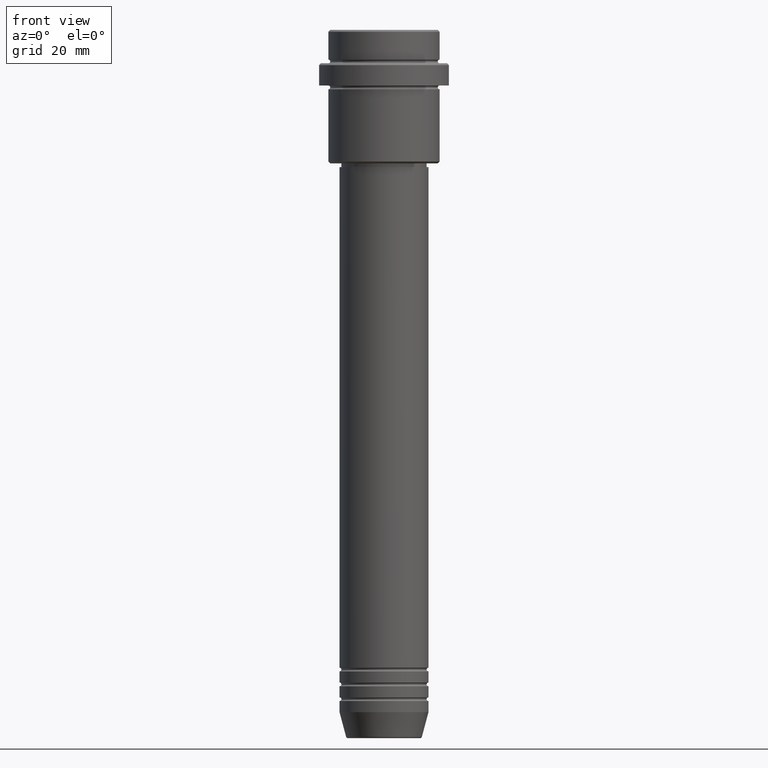
[diagram: clean part render]
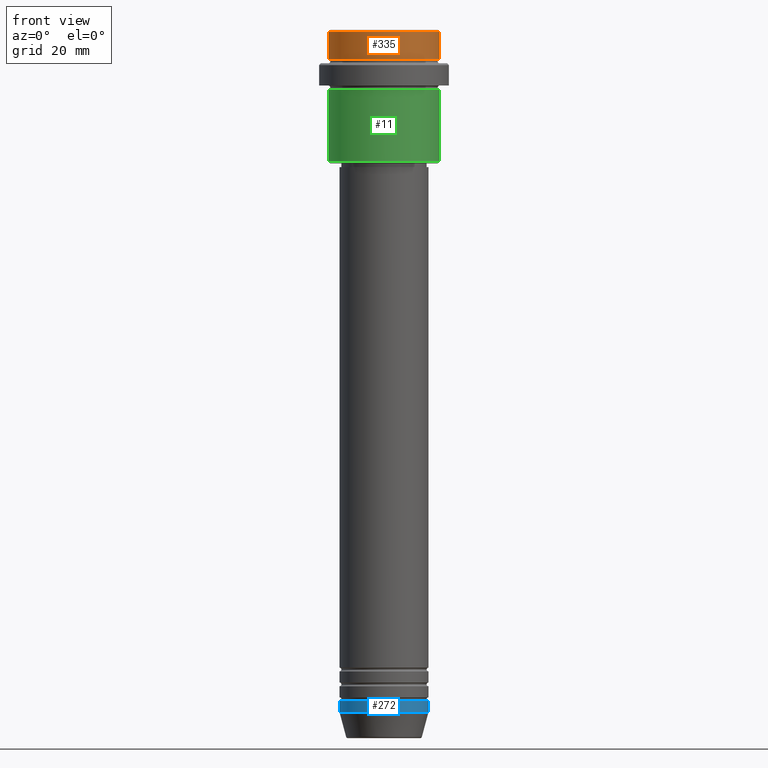
[diagram: same view with three faces highlighted in distinct colors, each labeled with its STEP entity id]
A machine part, front view with three faces highlighted in distinct colors.
Their STEP definitions:

[orange] entity #335 — the highlighted cylindrical surface (partial cylindrical patch) has radius 15 mm, axis along (-0, -0, 1).
#4 = AXIS2_PLACEMENT_3D ( 'NONE', #1113, #690, #12 ) ;
#12 = DIRECTION ( 'NONE',  ( 1.000000000000000000, 0.000000000000000000, 0.000000000000000000 ) ) ;
#42 = CARTESIAN_POINT ( 'NONE',  ( -15.00000000000000000, 1.836970198721029589E-15, -7.999999999999998224 ) ) ;
#122 = CYLINDRICAL_SURFACE ( 'NONE', #531, 15.00000000000000000 ) ;
#136 = EDGE_CURVE ( 'NONE', #305, #1326, #813, .T. ) ;
#305 = VERTEX_POINT ( 'NONE', #42 ) ;
#306 = FACE_OUTER_BOUND ( 'NONE', #519, .T. ) ;
#330 = ORIENTED_EDGE ( 'NONE', *, *, #1100, .T. ) ;
#335 = ADVANCED_FACE ( 'NONE', ( #306 ), #122, .T. ) ;
#348 = DIRECTION ( 'NONE',  ( 1.000000000000000000, 0.000000000000000000, 0.000000000000000000 ) ) ;
#395 = DIRECTION ( 'NONE',  ( 0.000000000000000000, 0.000000000000000000, -1.000000000000000000 ) ) ;
#446 = VECTOR ( 'NONE', #1207, 1000.000000000000000 ) ;
#462 = VERTEX_POINT ( 'NONE', #579 ) ;
#469 = CARTESIAN_POINT ( 'NONE',  ( 15.00000000000000000, 0.000000000000000000, 0.000000000000000000 ) ) ;
#519 = EDGE_LOOP ( 'NONE', ( #950, #1051, #330, #906 ) ) ;
#528 = EDGE_CURVE ( 'NONE', #462, #1110, #839, .T. ) ;
#531 = AXIS2_PLACEMENT_3D ( 'NONE', #547, #1000, #348 ) ;
#547 = CARTESIAN_POINT ( 'NONE',  ( 0.000000000000000000, 0.000000000000000000, 0.000000000000000000 ) ) ;
#566 = DIRECTION ( 'NONE',  ( -0.000000000000000000, -0.000000000000000000, 1.000000000000000000 ) ) ;
#579 = CARTESIAN_POINT ( 'NONE',  ( 15.00000000000000000, 0.000000000000000000, -0.5000000000000108802 ) ) ;
#633 = AXIS2_PLACEMENT_3D ( 'NONE', #1375, #395, #940 ) ;
#690 = DIRECTION ( 'NONE',  ( -0.000000000000000000, -0.000000000000000000, 1.000000000000000000 ) ) ;
#773 = CARTESIAN_POINT ( 'NONE',  ( -15.00000000000000000, 1.836970198721029589E-15, 0.000000000000000000 ) ) ;
#813 = CIRCLE ( 'NONE', #4, 15.00000000000000000 ) ;
#839 = CIRCLE ( 'NONE', #633, 15.00000000000000000 ) ;
#906 = ORIENTED_EDGE ( 'NONE', *, *, #528, .T. ) ;
#930 = CARTESIAN_POINT ( 'NONE',  ( 15.00000000000000000, 0.000000000000000000, -7.999999999999998224 ) ) ;
#940 = DIRECTION ( 'NONE',  ( 1.000000000000000000, 0.000000000000000000, 0.000000000000000000 ) ) ;
#950 = ORIENTED_EDGE ( 'NONE', *, *, #1371, .F. ) ;
#1000 = DIRECTION ( 'NONE',  ( -0.000000000000000000, -0.000000000000000000, 1.000000000000000000 ) ) ;
#1051 = ORIENTED_EDGE ( 'NONE', *, *, #136, .T. ) ;
#1100 = EDGE_CURVE ( 'NONE', #1326, #462, #1249, .T. ) ;
#1110 = VERTEX_POINT ( 'NONE', #1141 ) ;
#1113 = CARTESIAN_POINT ( 'NONE',  ( 0.000000000000000000, 0.000000000000000000, -7.999999999999998224 ) ) ;
#1141 = CARTESIAN_POINT ( 'NONE',  ( -15.00000000000000000, 1.836970198721029589E-15, -0.5000000000000108802 ) ) ;
#1207 = DIRECTION ( 'NONE',  ( -0.000000000000000000, -0.000000000000000000, 1.000000000000000000 ) ) ;
#1249 = LINE ( 'NONE', #469, #1368 ) ;
#1312 = LINE ( 'NONE', #773, #446 ) ;
#1326 = VERTEX_POINT ( 'NONE', #930 ) ;
#1368 = VECTOR ( 'NONE', #566, 1000.000000000000000 ) ;
#1371 = EDGE_CURVE ( 'NONE', #305, #1110, #1312, .T. ) ;
#1375 = CARTESIAN_POINT ( 'NONE',  ( 0.000000000000000000, 0.000000000000000000, -0.5000000000000108802 ) ) ;

[blue] entity #272 — the highlighted cylindrical surface (partial cylindrical patch) has radius 12 mm, axis along (-0, -0, 1).
#65 = DIRECTION ( 'NONE',  ( -0.000000000000000000, -0.000000000000000000, 1.000000000000000000 ) ) ;
#107 = DIRECTION ( 'NONE',  ( -0.000000000000000000, -0.000000000000000000, 1.000000000000000000 ) ) ;
#125 = VECTOR ( 'NONE', #877, 1000.000000000000000 ) ;
#172 = EDGE_LOOP ( 'NONE', ( #1196, #1215, #960, #1376 ) ) ;
#221 = LINE ( 'NONE', #1095, #463 ) ;
#272 = ADVANCED_FACE ( 'NONE', ( #1054 ), #811, .T. ) ;
#324 = CARTESIAN_POINT ( 'NONE',  ( 0.000000000000000000, 0.000000000000000000, -184.0000000000000000 ) ) ;
#326 = DIRECTION ( 'NONE',  ( 1.000000000000000000, 0.000000000000000000, 0.000000000000000000 ) ) ;
#340 = DIRECTION ( 'NONE',  ( -0.000000000000000000, -0.000000000000000000, 1.000000000000000000 ) ) ;
#442 = AXIS2_PLACEMENT_3D ( 'NONE', #982, #340, #326 ) ;
#463 = VECTOR ( 'NONE', #657, 1000.000000000000000 ) ;
#542 = CARTESIAN_POINT ( 'NONE',  ( -12.00000000000000000, 1.469576158976823947E-15, 0.000000000000000000 ) ) ;
#555 = DIRECTION ( 'NONE',  ( 1.000000000000000000, 0.000000000000000000, 0.000000000000000000 ) ) ;
#657 = DIRECTION ( 'NONE',  ( -0.000000000000000000, -0.000000000000000000, 1.000000000000000000 ) ) ;
#676 = AXIS2_PLACEMENT_3D ( 'NONE', #324, #107, #555 ) ;
#688 = VERTEX_POINT ( 'NONE', #966 ) ;
#774 = EDGE_CURVE ( 'NONE', #688, #1347, #221, .T. ) ;
#782 = EDGE_CURVE ( 'NONE', #1169, #1347, #862, .T. ) ;
#811 = CYLINDRICAL_SURFACE ( 'NONE', #879, 12.00000000000000000 ) ;
#862 = CIRCLE ( 'NONE', #442, 12.00000000000000000 ) ;
#877 = DIRECTION ( 'NONE',  ( -0.000000000000000000, -0.000000000000000000, 1.000000000000000000 ) ) ;
#879 = AXIS2_PLACEMENT_3D ( 'NONE', #1131, #65, #933 ) ;
#896 = CARTESIAN_POINT ( 'NONE',  ( 12.00000000000000000, 0.000000000000000000, -181.0000000000000000 ) ) ;
#933 = DIRECTION ( 'NONE',  ( 1.000000000000000000, 0.000000000000000000, 0.000000000000000000 ) ) ;
#934 = CARTESIAN_POINT ( 'NONE',  ( -12.00000000000000000, 1.469576158976823947E-15, -184.0000000000000000 ) ) ;
#960 = ORIENTED_EDGE ( 'NONE', *, *, #774, .T. ) ;
#962 = VERTEX_POINT ( 'NONE', #934 ) ;
#966 = CARTESIAN_POINT ( 'NONE',  ( 12.00000000000000000, 0.000000000000000000, -184.0000000000000000 ) ) ;
#982 = CARTESIAN_POINT ( 'NONE',  ( 0.000000000000000000, 0.000000000000000000, -181.0000000000000000 ) ) ;
#1021 = EDGE_CURVE ( 'NONE', #962, #688, #1250, .T. ) ;
#1054 = FACE_OUTER_BOUND ( 'NONE', #172, .T. ) ;
#1092 = LINE ( 'NONE', #542, #125 ) ;
#1095 = CARTESIAN_POINT ( 'NONE',  ( 12.00000000000000000, 0.000000000000000000, 0.000000000000000000 ) ) ;
#1131 = CARTESIAN_POINT ( 'NONE',  ( 0.000000000000000000, 0.000000000000000000, 0.000000000000000000 ) ) ;
#1169 = VERTEX_POINT ( 'NONE', #1298 ) ;
#1176 = EDGE_CURVE ( 'NONE', #962, #1169, #1092, .T. ) ;
#1196 = ORIENTED_EDGE ( 'NONE', *, *, #1176, .F. ) ;
#1215 = ORIENTED_EDGE ( 'NONE', *, *, #1021, .T. ) ;
#1250 = CIRCLE ( 'NONE', #676, 12.00000000000000000 ) ;
#1298 = CARTESIAN_POINT ( 'NONE',  ( -12.00000000000000000, 1.469576158976823947E-15, -181.0000000000000000 ) ) ;
#1347 = VERTEX_POINT ( 'NONE', #896 ) ;
#1376 = ORIENTED_EDGE ( 'NONE', *, *, #782, .F. ) ;

[green] entity #11 — the highlighted cylindrical surface (partial cylindrical patch) has radius 15 mm, axis along (-0, -0, 1).
#11 = ADVANCED_FACE ( 'NONE', ( #420 ), #317, .T. ) ;
#67 = DIRECTION ( 'NONE',  ( 1.000000000000000000, 0.000000000000000000, 0.000000000000000000 ) ) ;
#94 = DIRECTION ( 'NONE',  ( -0.000000000000000000, -0.000000000000000000, 1.000000000000000000 ) ) ;
#106 = DIRECTION ( 'NONE',  ( 1.000000000000000000, 0.000000000000000000, 0.000000000000000000 ) ) ;
#139 = ORIENTED_EDGE ( 'NONE', *, *, #539, .F. ) ;
#158 = ORIENTED_EDGE ( 'NONE', *, *, #656, .T. ) ;
#170 = EDGE_CURVE ( 'NONE', #709, #1333, #602, .T. ) ;
#187 = DIRECTION ( 'NONE',  ( -0.000000000000000000, -0.000000000000000000, 1.000000000000000000 ) ) ;
#194 = CARTESIAN_POINT ( 'NONE',  ( -15.00000000000000000, 1.836970198721029589E-15, -35.50000000000002132 ) ) ;
#197 = AXIS2_PLACEMENT_3D ( 'NONE', #1090, #94, #106 ) ;
#283 = EDGE_CURVE ( 'NONE', #678, #1252, #923, .T. ) ;
#317 = CYLINDRICAL_SURFACE ( 'NONE', #197, 15.00000000000000000 ) ;
#367 = CARTESIAN_POINT ( 'NONE',  ( 0.000000000000000000, 0.000000000000000000, -16.00000000000000000 ) ) ;
#393 = CARTESIAN_POINT ( 'NONE',  ( -15.00000000000000000, 1.836970198721029589E-15, 0.000000000000000000 ) ) ;
#420 = FACE_OUTER_BOUND ( 'NONE', #1041, .T. ) ;
#504 = CARTESIAN_POINT ( 'NONE',  ( 15.00000000000000178, 0.000000000000000000, -16.00000000000000000 ) ) ;
#521 = ORIENTED_EDGE ( 'NONE', *, *, #170, .F. ) ;
#530 = VECTOR ( 'NONE', #1140, 1000.000000000000000 ) ;
#532 = CIRCLE ( 'NONE', #674, 15.00000000000000000 ) ;
#539 = EDGE_CURVE ( 'NONE', #1333, #1252, #1009, .T. ) ;
#587 = CARTESIAN_POINT ( 'NONE',  ( 15.00000000000000000, 0.000000000000000000, 0.000000000000000000 ) ) ;
#602 = LINE ( 'NONE', #393, #1061 ) ;
#656 = EDGE_CURVE ( 'NONE', #709, #678, #532, .T. ) ;
#674 = AXIS2_PLACEMENT_3D ( 'NONE', #1083, #755, #740 ) ;
#678 = VERTEX_POINT ( 'NONE', #1411 ) ;
#709 = VERTEX_POINT ( 'NONE', #194 ) ;
#740 = DIRECTION ( 'NONE',  ( -1.000000000000000000, 0.000000000000000000, 0.000000000000000000 ) ) ;
#755 = DIRECTION ( 'NONE',  ( -0.000000000000000000, -0.000000000000000000, 1.000000000000000000 ) ) ;
#834 = DIRECTION ( 'NONE',  ( -0.000000000000000000, -0.000000000000000000, 1.000000000000000000 ) ) ;
#854 = ORIENTED_EDGE ( 'NONE', *, *, #283, .T. ) ;
#923 = LINE ( 'NONE', #587, #530 ) ;
#1009 = CIRCLE ( 'NONE', #1063, 15.00000000000000178 ) ;
#1041 = EDGE_LOOP ( 'NONE', ( #521, #158, #854, #139 ) ) ;
#1061 = VECTOR ( 'NONE', #834, 1000.000000000000000 ) ;
#1063 = AXIS2_PLACEMENT_3D ( 'NONE', #367, #187, #67 ) ;
#1083 = CARTESIAN_POINT ( 'NONE',  ( 0.000000000000000000, 0.000000000000000000, -35.50000000000002132 ) ) ;
#1090 = CARTESIAN_POINT ( 'NONE',  ( 0.000000000000000000, 0.000000000000000000, 0.000000000000000000 ) ) ;
#1140 = DIRECTION ( 'NONE',  ( -0.000000000000000000, -0.000000000000000000, 1.000000000000000000 ) ) ;
#1241 = CARTESIAN_POINT ( 'NONE',  ( -15.00000000000000355, 1.836970198721029983E-15, -16.00000000000000000 ) ) ;
#1252 = VERTEX_POINT ( 'NONE', #504 ) ;
#1333 = VERTEX_POINT ( 'NONE', #1241 ) ;
#1411 = CARTESIAN_POINT ( 'NONE',  ( 15.00000000000000000, 0.000000000000000000, -35.50000000000002132 ) ) ;